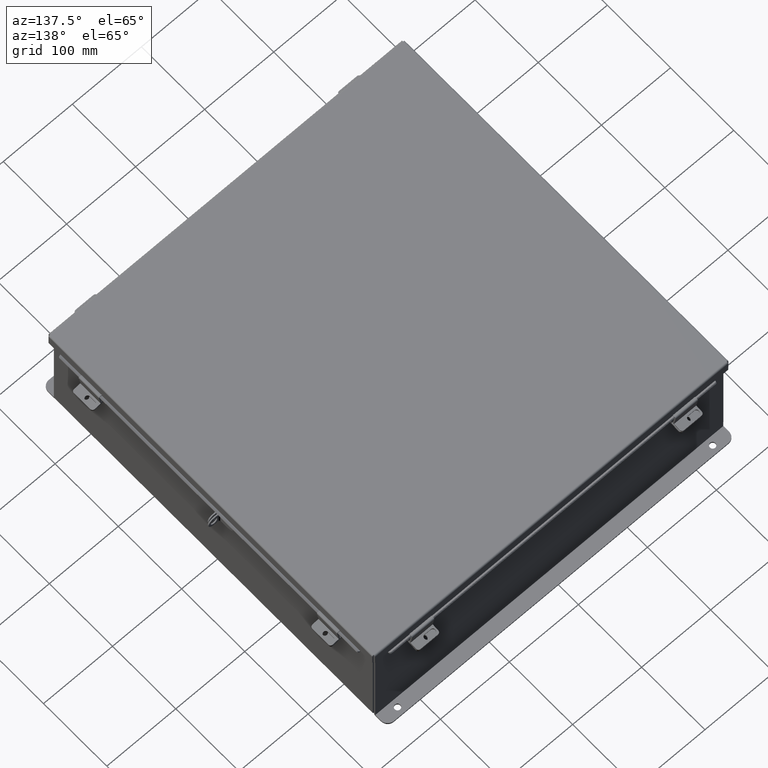
[diagram: clean part render]
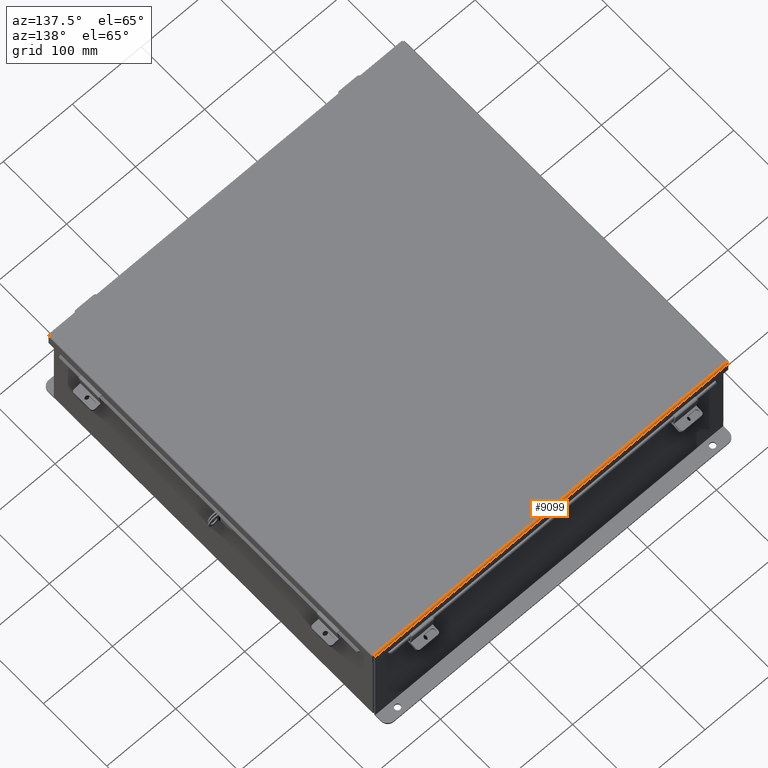
[diagram: same view with one face highlighted and labeled with its STEP entity id]
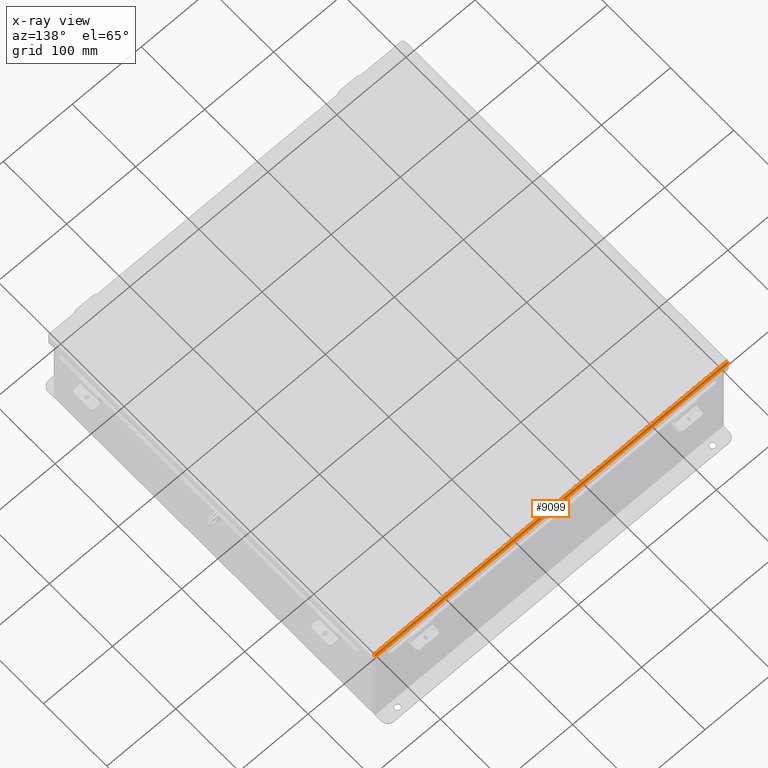
[diagram: x-ray of the same camera — body ghosted, the highlighted face saturated]
A machine part, auxiliary view. The second image highlights one B-rep face of the part: STEP entity #9099.
The next image is the same camera in x-ray: the body ghosted, the highlighted face saturated — about 0% of this face is hidden behind the body in this view.
In plain terms, the highlighted cylindrical surface (edge-blend (fillet) strip) has radius 2.2276 mm, axis along (1, -0, 0).
Its self-contained STEP definition (entity closure, byte-faithful):
#305 = CARTESIAN_POINT ( 'NONE',  ( 10.07398485450582900, 10.15624999999998200, 0.001520096845007063500 ) ) ;
#439 = VERTEX_POINT ( 'NONE', #6201 ) ;
#544 = DIRECTION ( 'NONE',  ( 1.000000000000000000, 3.215975411700707400E-030, -0.0000000000000000000 ) ) ;
#1888 = B_SPLINE_CURVE_WITH_KNOTS ( 'NONE', 3,
 ( #3709, #5413, #17557, #7141, #19309, #8880, #21059, #10650, #305, #12413 ),
 .UNSPECIFIED., .F., .F.,
 ( 4, 2, 2, 2, 4 ),
 ( 0.0000000000000000000, 0.2500000000000000000, 0.5000000000000000000, 0.7500000000000000000, 1.000000000000000000 ),
 .UNSPECIFIED. ) ;
#1935 = B_SPLINE_CURVE_WITH_KNOTS ( 'NONE', 3,
 ( #8563, #4941, #3473, #15582, #5160, #17310, #6905, #19079, #8629, #20825 ),
 .UNSPECIFIED., .F., .F.,
 ( 4, 2, 2, 2, 4 ),
 ( 0.0000000000000000000, 0.2500000000000000000, 0.5000000000000000000, 0.7500000000000000000, 1.000000000000000000 ),
 .UNSPECIFIED. ) ;
#2556 = ORIENTED_EDGE ( 'NONE', *, *, #7936, .F. ) ;
#3340 = ORIENTED_EDGE ( 'NONE', *, *, #16418, .F. ) ;
#3473 = CARTESIAN_POINT ( 'NONE',  ( -10.07349077682347800, 10.15396740374379500, -0.009955289458309115500 ) ) ;
#3498 = AXIS2_PLACEMENT_3D ( 'NONE', #21430, #19709, #11031 ) ;
#3574 = CYLINDRICAL_SURFACE ( 'NONE', #3498, 0.08770000000000026400 ) ;
#3709 = CARTESIAN_POINT ( 'NONE',  ( 10.06855000000003600, 10.06854999999998100, -0.07470000000000015500 ) ) ;
#3730 = EDGE_LOOP ( 'NONE', ( #8720, #2556, #18270, #3340 ) ) ;
#3889 = VERTEX_POINT ( 'NONE', #9252 ) ;
#4425 = DIRECTION ( 'NONE',  ( 1.000000000000000000, 3.215975411700707400E-030, -0.0000000000000000000 ) ) ;
#4941 = CARTESIAN_POINT ( 'NONE',  ( -10.07398485450581700, 10.15624999999997900, 0.001520096845007062900 ) ) ;
#5160 = CARTESIAN_POINT ( 'NONE',  ( -10.07200854377644300, 10.13868078207830500, -0.04089574734180033400 ) ) ;
#5413 = CARTESIAN_POINT ( 'NONE',  ( 10.06904407768238300, 10.08002990315497600, -0.07470000000000029400 ) ) ;
#6201 = CARTESIAN_POINT ( 'NONE',  ( -10.06855000000003200, 10.06854999999998400, -0.07469999999999907300 ) ) ;
#6905 = CARTESIAN_POINT ( 'NONE',  ( -10.07052631072940800, 10.11271738457851300, -0.06363106625866871100 ) ) ;
#7141 = CARTESIAN_POINT ( 'NONE',  ( 10.07052631072942200, 10.11271738457851100, -0.06363106625866869800 ) ) ;
#7936 = EDGE_CURVE ( 'NONE', #19159, #439, #1935, .T. ) ;
#8563 = CARTESIAN_POINT ( 'NONE',  ( -10.07447893218816400, 10.15624999999998400, 0.01300000000000010700 ) ) ;
#8629 = CARTESIAN_POINT ( 'NONE',  ( -10.06904407768237400, 10.08002990315497400, -0.07470000000000032200 ) ) ;
#8720 = ORIENTED_EDGE ( 'NONE', *, *, #16744, .F. ) ;
#8880 = CARTESIAN_POINT ( 'NONE',  ( 10.07200854377644800, 10.13868078207830500, -0.04089574734180034100 ) ) ;
#9099 = ADVANCED_FACE ( 'NONE', ( #17943 ), #3574, .T. ) ;
#9252 = CARTESIAN_POINT ( 'NONE',  ( 10.06855000000003600, 10.06854999999998100, -0.07470000000000015500 ) ) ;
#10650 = CARTESIAN_POINT ( 'NONE',  ( 10.07349077682348500, 10.15396740374379500, -0.009955289458309117200 ) ) ;
#11031 = DIRECTION ( 'NONE',  ( 0.0000000000000000000, 1.000000000000000000, -3.577373637655407700E-015 ) ) ;
#11858 = LINE ( 'NONE', #19562, #15385 ) ;
#12413 = CARTESIAN_POINT ( 'NONE',  ( 10.07447893218817300, 10.15624999999998400, 0.01300000000000010700 ) ) ;
#14079 = VECTOR ( 'NONE', #4425, 39.37007874015748100 ) ;
#15385 = VECTOR ( 'NONE', #544, 39.37007874015748100 ) ;
#15582 = CARTESIAN_POINT ( 'NONE',  ( -10.07250262145878500, 10.14518106625864900, -0.03116738457852814100 ) ) ;
#16418 = EDGE_CURVE ( 'NONE', #3889, #19461, #1888, .T. ) ;
#16532 = CARTESIAN_POINT ( 'NONE',  ( -10.07447893218816600, 10.06854999999998400, -0.07469999999999907300 ) ) ;
#16744 = EDGE_CURVE ( 'NONE', #439, #3889, #18696, .T. ) ;
#17310 = CARTESIAN_POINT ( 'NONE',  ( -10.07102038841175000, 10.12244574734178600, -0.05713078207832069500 ) ) ;
#17557 = CARTESIAN_POINT ( 'NONE',  ( 10.06953815536473100, 10.09150528945829400, -0.07241740374381158700 ) ) ;
#17893 = EDGE_CURVE ( 'NONE', #19159, #19461, #11858, .T. ) ;
#17943 = FACE_OUTER_BOUND ( 'NONE', #3730, .T. ) ;
#18270 = ORIENTED_EDGE ( 'NONE', *, *, #17893, .T. ) ;
#18696 = LINE ( 'NONE', #16532, #14079 ) ;
#19079 = CARTESIAN_POINT ( 'NONE',  ( -10.06953815536471300, 10.09150528945829400, -0.07241740374381157300 ) ) ;
#19159 = VERTEX_POINT ( 'NONE', #19997 ) ;
#19309 = CARTESIAN_POINT ( 'NONE',  ( 10.07102038841176200, 10.12244574734178000, -0.05713078207832070900 ) ) ;
#19461 = VERTEX_POINT ( 'NONE', #20731 ) ;
#19562 = CARTESIAN_POINT ( 'NONE',  ( 10.15625000000003900, 10.15624999999998400, 0.01299999999999901400 ) ) ;
#19709 = DIRECTION ( 'NONE',  ( -1.000000000000000000, -3.215975411700707400E-030, 0.0000000000000000000 ) ) ;
#19997 = CARTESIAN_POINT ( 'NONE',  ( -10.07447893218816400, 10.15624999999998400, 0.01300000000000010700 ) ) ;
#20731 = CARTESIAN_POINT ( 'NONE',  ( 10.07447893218817300, 10.15624999999998400, 0.01300000000000010700 ) ) ;
#20825 = CARTESIAN_POINT ( 'NONE',  ( -10.06855000000003200, 10.06854999999998400, -0.07469999999999907300 ) ) ;
#21059 = CARTESIAN_POINT ( 'NONE',  ( 10.07250262145879400, 10.14518106625865600, -0.03116738457852815500 ) ) ;
#21430 = CARTESIAN_POINT ( 'NONE',  ( -10.07447893218816400, 10.06854999999998400, 0.01300000000000010700 ) ) ;